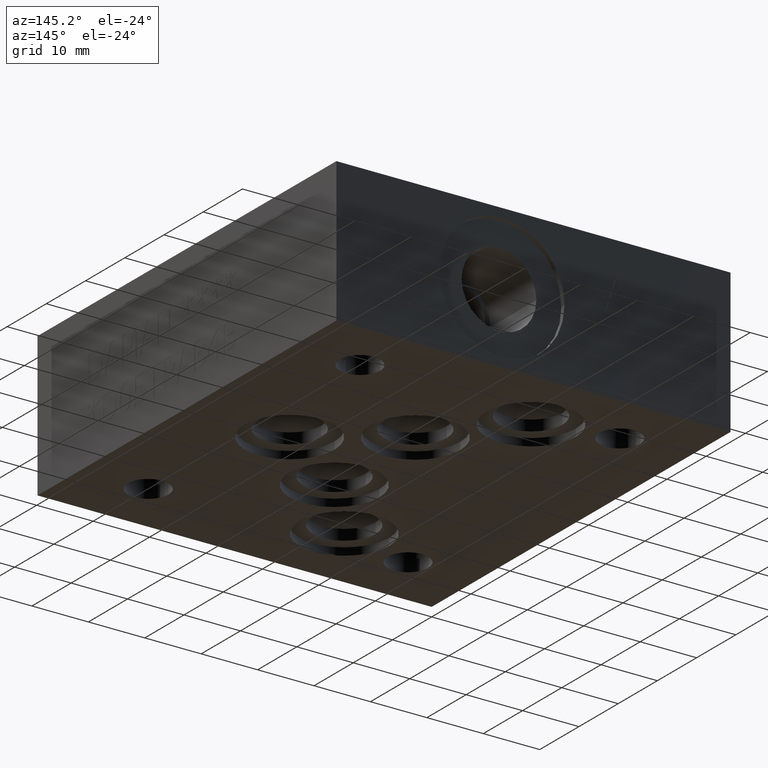
[diagram: clean part render]
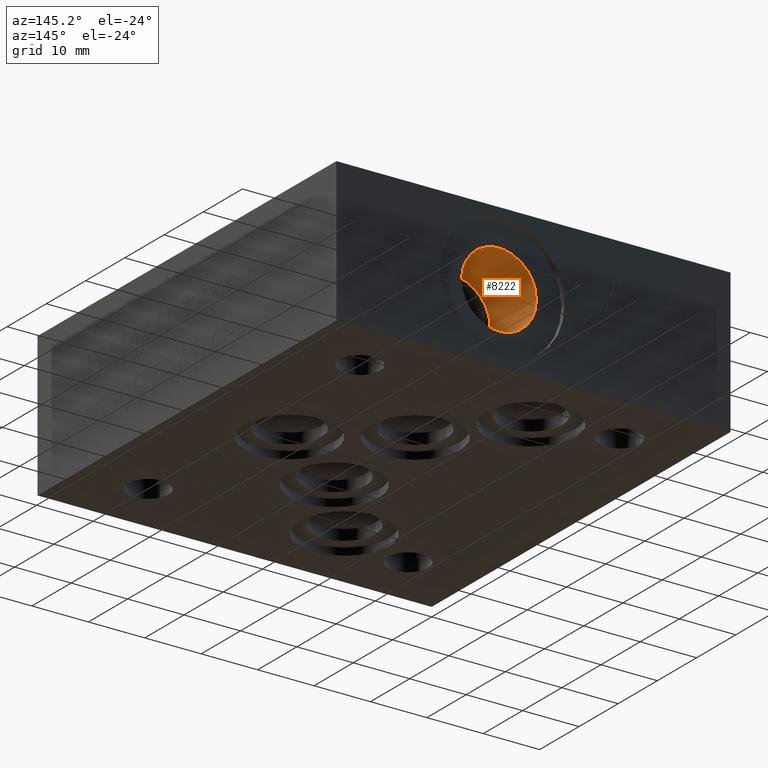
[diagram: same view with one face highlighted and labeled with its STEP entity id]
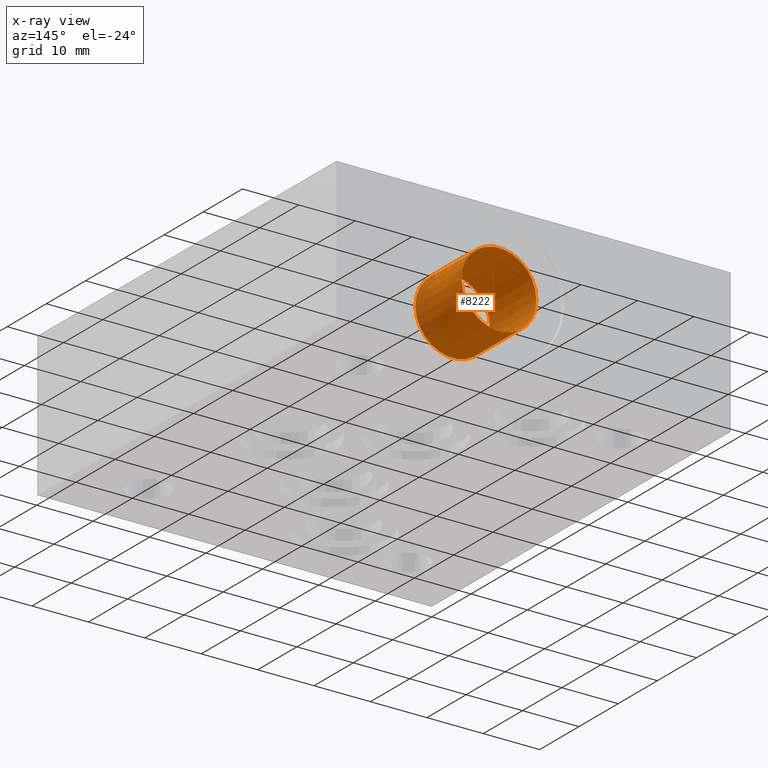
[diagram: x-ray of the same camera — body ghosted, the highlighted face saturated]
A machine part, auxiliary view. The second image highlights one B-rep face of the part: STEP entity #8222.
The next image is the same camera in x-ray: the body ghosted, the highlighted face saturated — about 14% of this face is hidden behind the body in this view.
In plain terms, the highlighted cylindrical surface (bore or boss wall) has radius 6.6294 mm, axis along (0, -1, 0).
Its self-contained STEP definition (entity closure, byte-faithful):
#30=CYLINDRICAL_SURFACE('',#8617,6.6294);
#104=CIRCLE('',#8616,6.6294);
#105=CIRCLE('',#8618,6.6294);
#877=FACE_OUTER_BOUND('',#1357,.T.);
#1357=EDGE_LOOP('',(#7248,#7249,#7250,#7251));
#2236=LINE('',#13780,#3096);
#3096=VECTOR('',#10206,6.6294);
#4019=VERTEX_POINT('',#13776);
#4020=VERTEX_POINT('',#13779);
#5113=EDGE_CURVE('',#4019,#4019,#104,.T.);
#5114=EDGE_CURVE('',#4019,#4020,#2236,.T.);
#5115=EDGE_CURVE('',#4020,#4020,#105,.T.);
#7248=ORIENTED_EDGE('',*,*,#5113,.F.);
#7249=ORIENTED_EDGE('',*,*,#5114,.T.);
#7250=ORIENTED_EDGE('',*,*,#5115,.T.);
#7251=ORIENTED_EDGE('',*,*,#5114,.F.);
#8222=ADVANCED_FACE('',(#877),#30,.F.);
#8616=AXIS2_PLACEMENT_3D('',#13777,#10202,#10203);
#8617=AXIS2_PLACEMENT_3D('',#13778,#10204,#10205);
#8618=AXIS2_PLACEMENT_3D('',#13781,#10207,#10208);
#10202=DIRECTION('center_axis',(0.,-1.,0.));
#10203=DIRECTION('ref_axis',(1.,0.,0.));
#10204=DIRECTION('center_axis',(0.,-1.,0.));
#10205=DIRECTION('ref_axis',(1.,0.,0.));
#10206=DIRECTION('',(0.,-1.,0.));
#10207=DIRECTION('center_axis',(0.,-1.,0.));
#10208=DIRECTION('ref_axis',(1.,0.,0.));
#13776=CARTESIAN_POINT('',(33.8582,75.4126,12.7));
#13777=CARTESIAN_POINT('Origin',(40.4876,75.4126,12.7));
#13778=CARTESIAN_POINT('Origin',(40.4876,69.5198,12.7));
#13779=CARTESIAN_POINT('',(33.8582,63.627,12.7));
#13780=CARTESIAN_POINT('',(33.8582,69.5198,12.7));
#13781=CARTESIAN_POINT('Origin',(40.4876,63.627,12.7));